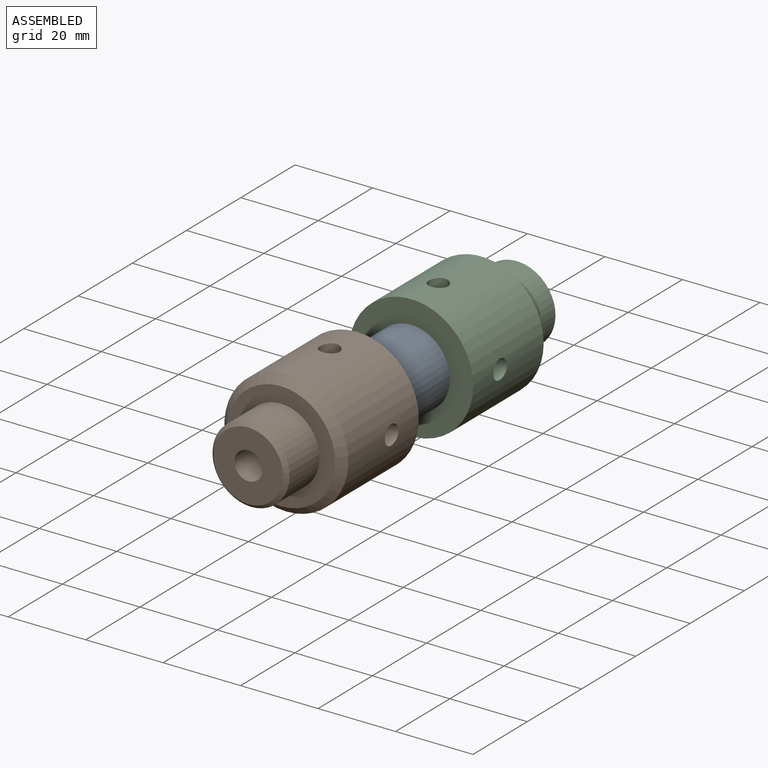
[diagram: assembled view]
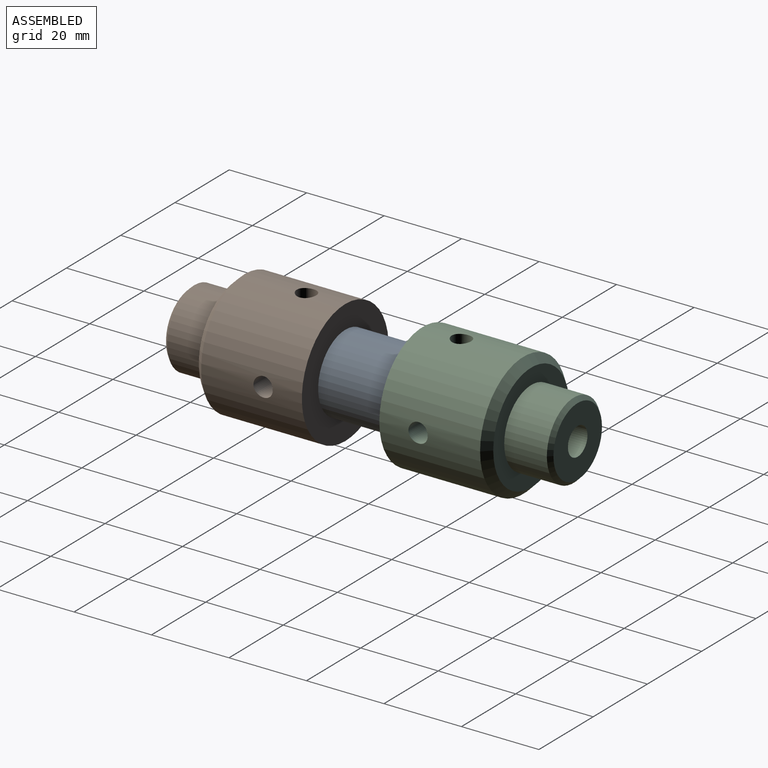
[diagram: assembled view, second angle]
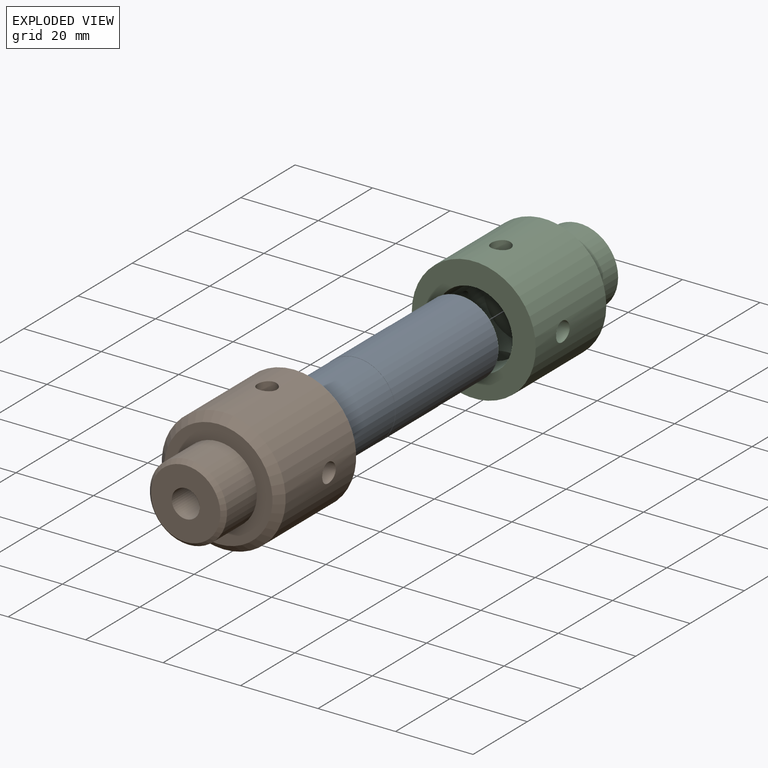
[diagram: exploded view]
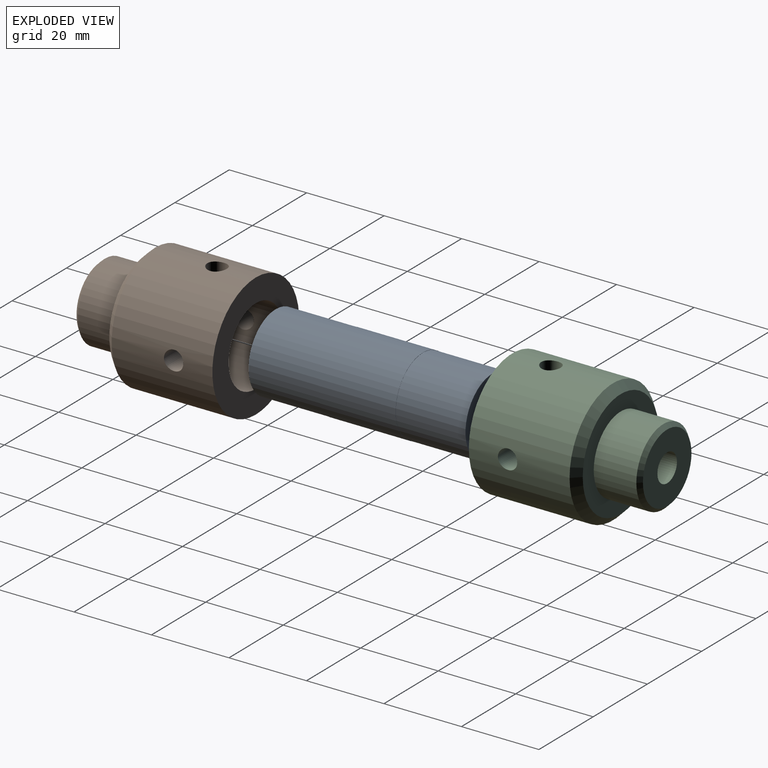
[diagram: exploded view, second angle]
ASSEMBLY  parts=3 mates=2
PART A: 7 faces, bbox 20x56x20 mm
  f0: cylinder r=10mm len=20mm, axis (0,1,0), area 1256.6mm2, adj f2,f5
  f1: cylinder r=9.95mm len=19.9mm, axis (0,-1,0), area 1125.3mm2, adj f2,f3
  f2: plane 20x20mm, normal (0,-1,0), area 3.1mm2, adj f0,f1
  f3: plane 19.9x19.9mm, normal (0,-1,0), area 311mm2, adj f1
  f4: cylinder r=9.95mm len=19.9mm, axis (0,1,0), area 1125.3mm2, adj f5,f6
  f5: plane 20x20mm, normal (0,1,0), area 3.1mm2, adj f0,f4
  f6: plane 19.9x19.9mm, normal (0,1,0), area 311mm2, adj f4
PART B: 15 faces, bbox 40x32x32 mm
  f0: cylinder r=16mm len=32mm, axis (1,0,0), area 2535mm2, adj f3,f6,f8,f9,f10,f11
  f1: cylinder r=10mm len=20mm, axis (1,0,0), area 1051.9mm2, adj f3,f7,f8,f9,f10,f11
  f2: plane 17.9x17.9mm, normal (-1,0,0), area 210.9mm2, adj f13,f14
  f3: plane 32x32mm, normal (1,0,0), area 490.1mm2, adj f0,f1
  f4: plane 28x28mm, normal (-1,0,0), area 304.7mm2, adj f5,f6
  f5: cylinder r=9.95mm len=19.9mm, axis (1,0,0), area 687.7mm2, adj f4,f14
  f6: cone r=16mm half-angle=45deg, axis (1,0,0), area 266.6mm2, adj f0,f4
  f7: plane 20x20mm, normal (1,0,0), area 314.2mm2, adj f1
  f8: cylinder r=2.5mm len=6.32mm, axis (0,0,-1), area 95.2mm2, adj f0,f1
  f9: cylinder r=2.5mm len=6.32mm, axis (0,0,-1), area 95.2mm2, adj f0,f1
  f10: cylinder r=2.5mm len=6.32mm, axis (0,-1,0), area 95.2mm2, adj f0,f1
  f11: cylinder r=2.5mm len=6.32mm, axis (0,-1,0), area 95.2mm2, adj f0,f1
  f12: cone r=0mm half-angle=59deg, axis (-1,0,0), area 47.5mm2, adj f13
  f13: cylinder r=3.6mm len=14.25mm, axis (-1,0,0), area 322.3mm2, adj f2,f12
  f14: cone r=9.95mm half-angle=45deg, axis (1,0,0), area 84mm2, adj f2,f5
PART C: same geometry as B
PLACE A rot(axis=(0,-1,0),180deg) t=(0,78,0)mm
PLACE B rot(axis=(0,0,1),90deg) t=(0,0,0)mm
PLACE C rot(axis=(-0.58,0.58,-0.58),120deg) t=(0,100,0)mm
MATE fastened A.f4 <-> C.f1  axis (0,1,0) through (0,78,0)mm
MATE fastened B.f1 <-> A.f1  axis (0,1,0) through (0,22,0)mm
